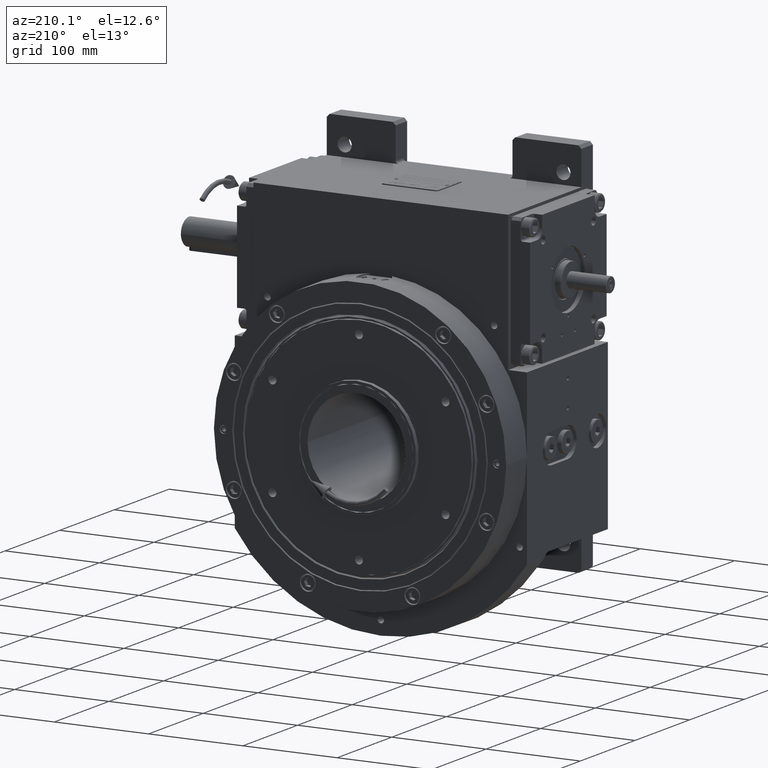
[diagram: clean part render]
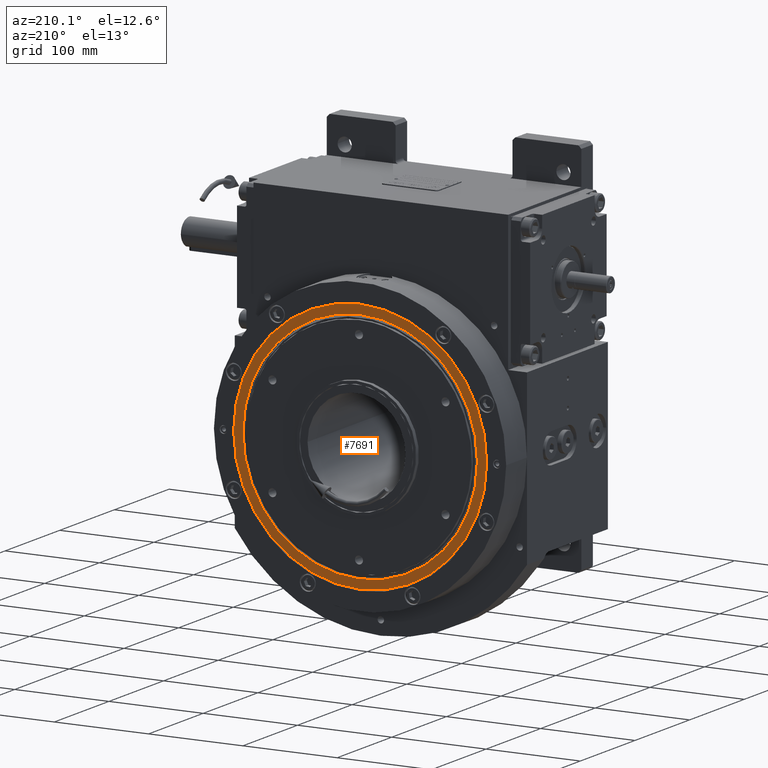
[diagram: same view with one face highlighted and labeled with its STEP entity id]
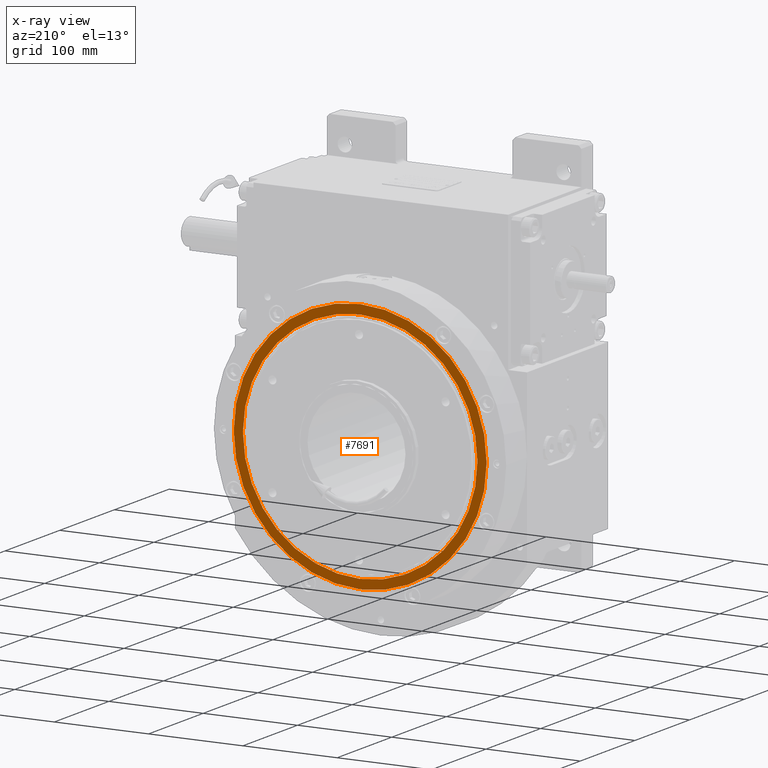
[diagram: x-ray of the same camera — body ghosted, the highlighted face saturated]
A machine part, auxiliary view. The second image highlights one B-rep face of the part: STEP entity #7691.
The next image is the same camera in x-ray: the body ghosted, the highlighted face saturated — about 0% of this face is hidden behind the body in this view.
In plain terms, the highlighted planar face has unit normal (0, -1, 0).
Its self-contained STEP definition (entity closure, byte-faithful):
#2911 = DIRECTION ( 'NONE',  ( 0.000000000000000000, 1.000000000000000000, 0.000000000000000000 ) ) ;
#4302 = ORIENTED_EDGE ( 'NONE', *, *, #17602, .T. ) ;
#4359 = CARTESIAN_POINT ( 'NONE',  ( -6.111119403912000228E-13, 14.99999921314999796, -1.183053655041000191E-12 ) ) ;
#4525 = CARTESIAN_POINT ( 'NONE',  ( 134.1339612461999877, 14.99999921314999796, 0.000000000000000000 ) ) ;
#7691 = ADVANCED_FACE ( 'NONE', ( #37294, #15427 ), #58757, .F. ) ;
#9778 = DIRECTION ( 'NONE',  ( 0.000000000000000000, -1.000000000000000000, 0.000000000000000000 ) ) ;
#11803 = EDGE_CURVE ( 'NONE', #55346, #24149, #39953, .T. ) ;
#11879 = DIRECTION ( 'NONE',  ( 1.000000000000000000, 0.000000000000000000, 0.000000000000000000 ) ) ;
#12507 = ORIENTED_EDGE ( 'NONE', *, *, #40913, .T. ) ;
#14991 = CARTESIAN_POINT ( 'NONE',  ( -134.1339612461999877, 14.99999921314999796, 2.672004318779999831E-14 ) ) ;
#15298 = CIRCLE ( 'NONE', #37810, 134.1339612461999877 ) ;
#15427 = FACE_BOUND ( 'NONE', #69757, .T. ) ;
#15725 = CIRCLE ( 'NONE', #16879, 124.3716342951999962 ) ;
#16879 = AXIS2_PLACEMENT_3D ( 'NONE', #33871, #17652, #31867 ) ;
#17602 = EDGE_CURVE ( 'NONE', #24149, #27711, #15298, .T. ) ;
#17652 = DIRECTION ( 'NONE',  ( 0.000000000000000000, 1.000000000000000000, 0.000000000000000000 ) ) ;
#19374 = AXIS2_PLACEMENT_3D ( 'NONE', #58068, #9778, #31300 ) ;
#19532 = VERTEX_POINT ( 'NONE', #29185 ) ;
#19953 = DIRECTION ( 'NONE',  ( 1.000000000000000000, 0.000000000000000000, 0.000000000000000000 ) ) ;
#20272 = CARTESIAN_POINT ( 'NONE',  ( 124.3716342951999962, 15.00000000000000000, 0.000000000000000000 ) ) ;
#21430 = AXIS2_PLACEMENT_3D ( 'NONE', #43987, #33404, #11879 ) ;
#21537 = ORIENTED_EDGE ( 'NONE', *, *, #11803, .T. ) ;
#24149 = VERTEX_POINT ( 'NONE', #4525 ) ;
#25186 = EDGE_CURVE ( 'NONE', #27711, #55346, #65493, .T. ) ;
#27711 = VERTEX_POINT ( 'NONE', #65883 ) ;
#29185 = CARTESIAN_POINT ( 'NONE',  ( -124.3716342951999962, 15.00000000000000000, 1.523113238442999970E-14 ) ) ;
#31300 = DIRECTION ( 'NONE',  ( 0.000000000000000000, 0.000000000000000000, -1.000000000000000000 ) ) ;
#31867 = DIRECTION ( 'NONE',  ( 1.000000000000000000, 0.000000000000000000, 0.000000000000000000 ) ) ;
#33404 = DIRECTION ( 'NONE',  ( 0.000000000000000000, -1.000000000000000000, 0.000000000000000000 ) ) ;
#33871 = CARTESIAN_POINT ( 'NONE',  ( 0.000000000000000000, 15.00000000000000000, 0.000000000000000000 ) ) ;
#33999 = CARTESIAN_POINT ( 'NONE',  ( 5.754944283281999023E-13, 14.99999921314999796, -1.808331262508999781E-12 ) ) ;
#34254 = EDGE_CURVE ( 'NONE', #59856, #19532, #15725, .T. ) ;
#34906 = CIRCLE ( 'NONE', #21430, 124.3716342951999962 ) ;
#37294 = FACE_OUTER_BOUND ( 'NONE', #64342, .T. ) ;
#37810 = AXIS2_PLACEMENT_3D ( 'NONE', #58618, #37842, #42773 ) ;
#37842 = DIRECTION ( 'NONE',  ( 0.000000000000000000, 1.000000000000000000, 0.000000000000000000 ) ) ;
#39575 = AXIS2_PLACEMENT_3D ( 'NONE', #4359, #63276, #19953 ) ;
#39953 = CIRCLE ( 'NONE', #48969, 134.1339612461999877 ) ;
#40913 = EDGE_CURVE ( 'NONE', #59856, #19532, #34906, .T. ) ;
#42095 = ORIENTED_EDGE ( 'NONE', *, *, #25186, .T. ) ;
#42773 = DIRECTION ( 'NONE',  ( 1.000000000000000000, 0.000000000000000000, 0.000000000000000000 ) ) ;
#43987 = CARTESIAN_POINT ( 'NONE',  ( 0.000000000000000000, 15.00000000000000000, 0.000000000000000000 ) ) ;
#48969 = AXIS2_PLACEMENT_3D ( 'NONE', #33999, #2911, #56514 ) ;
#55346 = VERTEX_POINT ( 'NONE', #14991 ) ;
#55741 = ORIENTED_EDGE ( 'NONE', *, *, #34254, .F. ) ;
#56514 = DIRECTION ( 'NONE',  ( -1.000000000000000000, 0.000000000000000000, 1.368073594971000355E-14 ) ) ;
#58068 = CARTESIAN_POINT ( 'NONE',  ( 0.000000000000000000, 15.00000000000000000, 0.000000000000000000 ) ) ;
#58618 = CARTESIAN_POINT ( 'NONE',  ( -6.111119403912000228E-13, 14.99999921314999796, -1.183053655041000191E-12 ) ) ;
#58757 = PLANE ( 'NONE',  #19374 ) ;
#59856 = VERTEX_POINT ( 'NONE', #20272 ) ;
#63276 = DIRECTION ( 'NONE',  ( 0.000000000000000000, 1.000000000000000000, 0.000000000000000000 ) ) ;
#64342 = EDGE_LOOP ( 'NONE', ( #4302, #42095, #21537 ) ) ;
#65493 = CIRCLE ( 'NONE', #39575, 134.1339612461999877 ) ;
#65883 = CARTESIAN_POINT ( 'NONE',  ( -6.112497290022000890E-13, 14.99999921314999796, -134.1339612462011814 ) ) ;
#69757 = EDGE_LOOP ( 'NONE', ( #55741, #12507 ) ) ;